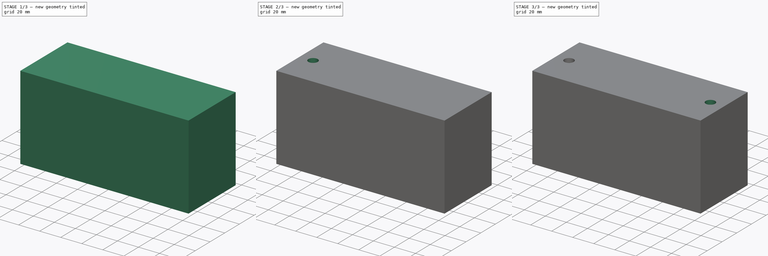
[diagram: build sequence overview — one tinted view per stage of 3, left to right]
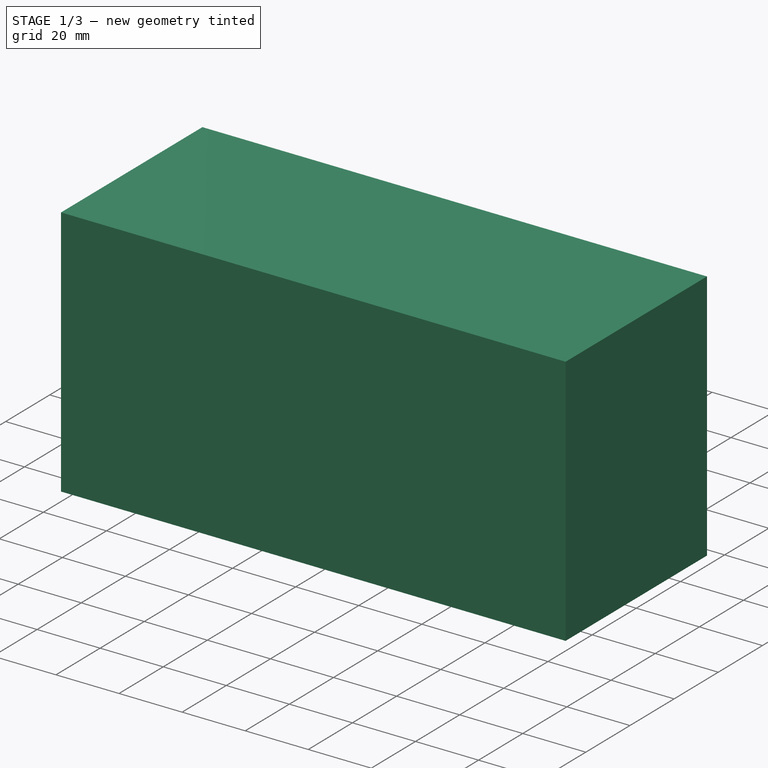
[diagram: stage 1 of 3 — iso view after this stage's code; geometry added in this stage tinted green]
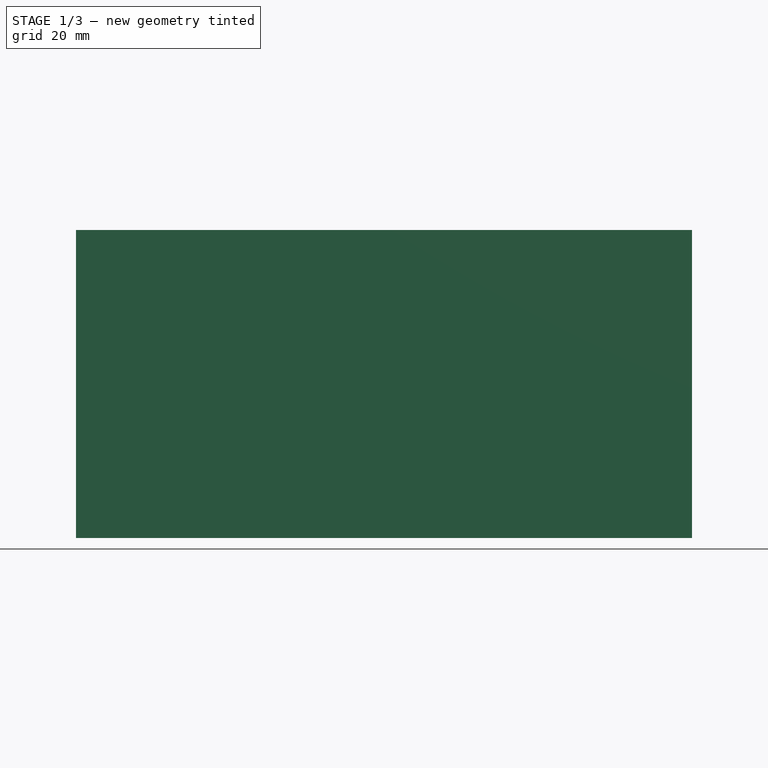
[diagram: stage 1 of 3 — front view after this stage's code; geometry added in this stage tinted green]
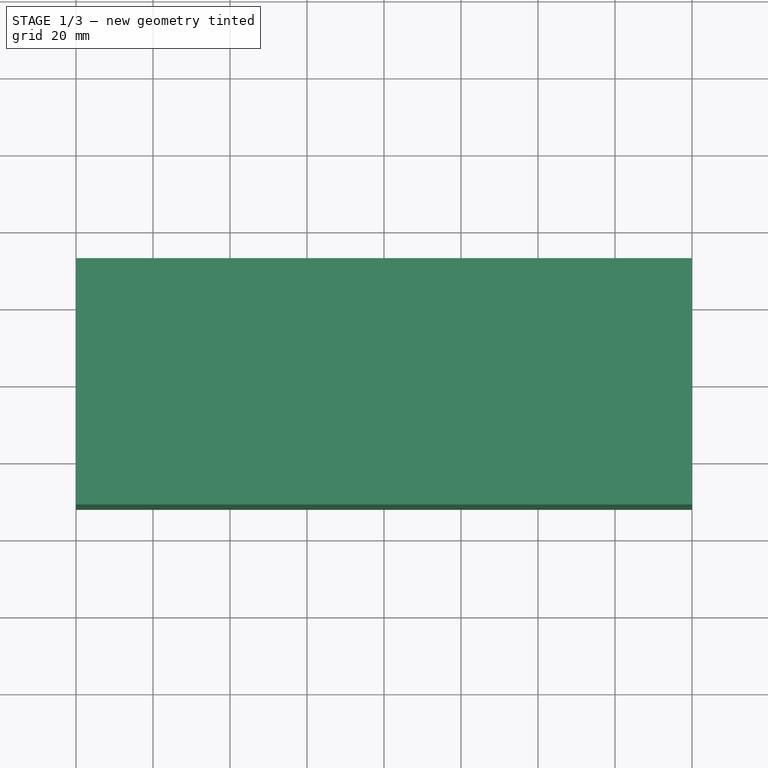
[diagram: stage 1 of 3 — top view after this stage's code; geometry added in this stage tinted green]
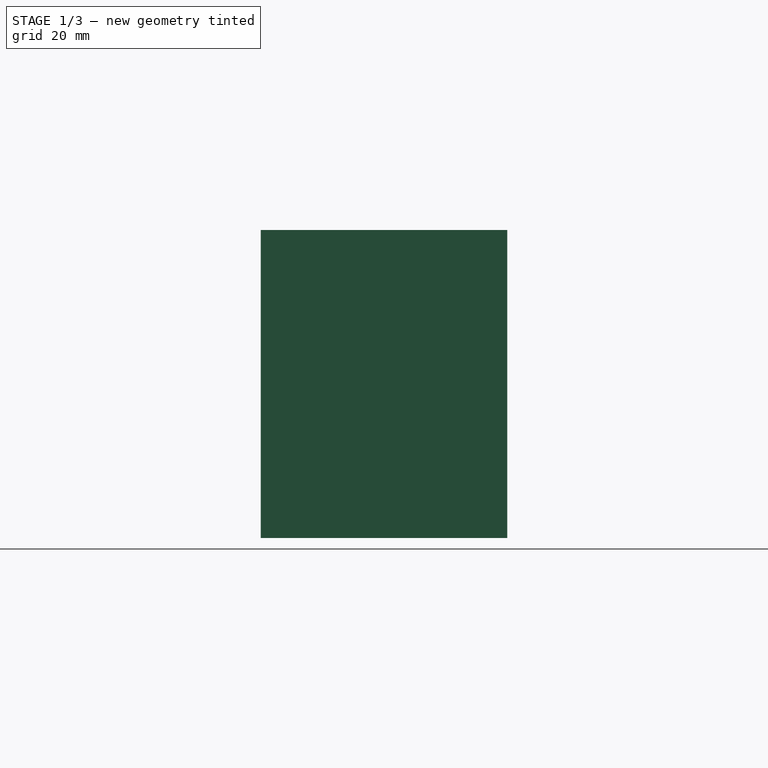
[diagram: stage 1 of 3 — right view after this stage's code; geometry added in this stage tinted green]
FCSTD DOCUMENT  (FreeCAD 0.21R33771 (Git))
Label: aquarium_filter
License: All rights reserved
LicenseURL: http://en.wikipedia.org/wiki/All_rights_reserved
objects: Sketcher::SketchObject×8, PartDesign::Pocket×6, PartDesign::Pad×2, PartDesign::Body×2
note: 26 computed .brp shape members not serialized (recipe doc carries the construction recipe); baked Part::Feature solids carry a one-line shape summary decoded from their .brp

FEATURE [Sketcher::SketchObject] Sketch
  FullyConstrained = true
  MapMode = 5
  Support = -> [XY_Plane]
  sketch-geometry (4):
    g0: LineSegment StartX=-80 StartY=32 StartZ=0 EndX=80 EndY=32 EndZ=0
    g1: LineSegment StartX=80 StartY=32 StartZ=0 EndX=80 EndY=-32 EndZ=0
    g2: LineSegment StartX=80 StartY=-32 StartZ=0 EndX=-80 EndY=-32 EndZ=0
    g3: LineSegment StartX=-80 StartY=-32 StartZ=0 EndX=-80 EndY=32 EndZ=0
  constraints (11):
    c: Coincident(g0,g1)
    c: Coincident(g1,g2)
    c: Coincident(g2,g3)
    c: Coincident(g3,g0)
    c: Horizontal(g0)
    c: Horizontal(g2)
    c: Vertical(g1)
    c: Vertical(g3)
    c: DistanceX(g0,g0) = 160
    c: DistanceY(g3,g3) = 64
    c: Symmetric(g0,g1,g-1)
FEATURE [PartDesign::Pad] Pad
  Direction = (0,0,1)
  Length = 80
  Length2 = 10
  Profile = -> Sketch
  ReferenceAxis = -> Sketch [N_Axis]
  Type = 0
FEATURE [Sketcher::SketchObject] Sketch001
  FullyConstrained = true
  MapMode = 5
  Support = -> [XY_Plane]
  sketch-geometry (6):
    g0: LineSegment StartX=-78 StartY=28 StartZ=0 EndX=78 EndY=28 EndZ=0
    g1: LineSegment StartX=78 StartY=28 StartZ=0 EndX=78 EndY=-28 EndZ=0
    g2: LineSegment StartX=78 StartY=-28 StartZ=0 EndX=-78 EndY=-28 EndZ=0
    g3: LineSegment StartX=-78 StartY=-28 StartZ=0 EndX=-78 EndY=28 EndZ=0
    g4: Circle CenterX=67 CenterY=0 CenterZ=0 NormalX=0 NormalY=0 NormalZ=1 AngleXU=0 Radius=4.5
    g5: Circle CenterX=67 CenterY=0 CenterZ=0 NormalX=0 NormalY=0 NormalZ=1 AngleXU=0 Radius=6.5
  constraints (16):
    c: Coincident(g0,g1)
    c: Coincident(g1,g2)
    c: Coincident(g2,g3)
    c: Coincident(g3,g0)
    c: Horizontal(g0)
    c: Horizontal(g2)
    c: Vertical(g1)
    c: Vertical(g3)
    c: DistanceX(g0,g0) = 156
    c: DistanceY(g3,g3) = 56
    c: Symmetric(g0,g1,g-1)
    c: PointOnObject(g4,g-1)
    c: Radius(g4) = 4.5
    c: DistanceX(g-1,g4) = 67
    c: Coincident(g5,g4)
    c: Radius(g5) = 6.5
FEATURE [PartDesign::Pocket] Pocket
  BaseFeature = -> Pad
  Direction = (0,0,-1)
  Length = 76
  Length2 = 5
  Profile = -> Sketch001
  ReferenceAxis = -> Sketch001 [N_Axis]
  Reversed = true
  Type = 0
FEATURE [PartDesign::Body] Body
  Group = -> [Sketch,Pad,Sketch001,Pocket,Sketch002,Pocket001,Sketch003,Pocket002,Sketch004,Pocket003,Sketch005,Pocket004,Sketch006,Pocket005]
  Origin = -> Origin
  Tip = -> Pocket005
FEATURE [Sketcher::SketchObject] Sketch007
  FullyConstrained = false
  MapMode = 5
  Support = -> [XY_Plane001]
  sketch-geometry (4):
    g0: LineSegment StartX=-54.1197 StartY=28.822 StartZ=0 EndX=-52.1197 EndY=28.822 EndZ=0
    g1: LineSegment StartX=-52.1197 StartY=28.822 StartZ=0 EndX=-52.1197 EndY=-28.178 EndZ=0
    g2: LineSegment StartX=-52.1197 StartY=-28.178 StartZ=0 EndX=-54.1197 EndY=-28.178 EndZ=0
    g3: LineSegment StartX=-54.1197 StartY=-28.178 StartZ=0 EndX=-54.1197 EndY=28.822 EndZ=0
  constraints (10):
    c: Coincident(g0,g1)
    c: Coincident(g1,g2)
    c: Coincident(g2,g3)
    c: Coincident(g3,g0)
    c: Horizontal(g0)
    c: Horizontal(g2)
    c: Vertical(g1)
    c: Vertical(g3)
    c: DistanceX(g2,g2) = 2
    c: DistanceY(g1,g1) = 57
FEATURE [PartDesign::Pad] Pad001
  Direction = (0,0,1)
  Length = 56
  Length2 = 10
  Profile = -> Sketch007
  ReferenceAxis = -> Sketch007 [N_Axis]
  Type = 0
FEATURE [PartDesign::Body] Body001
  Group = -> [Sketch007,Pad001]
  Origin = -> Origin001
  Placement = pos=(0,0,12) rot=(0,0,1;0rad)
  Tip = -> Pad001
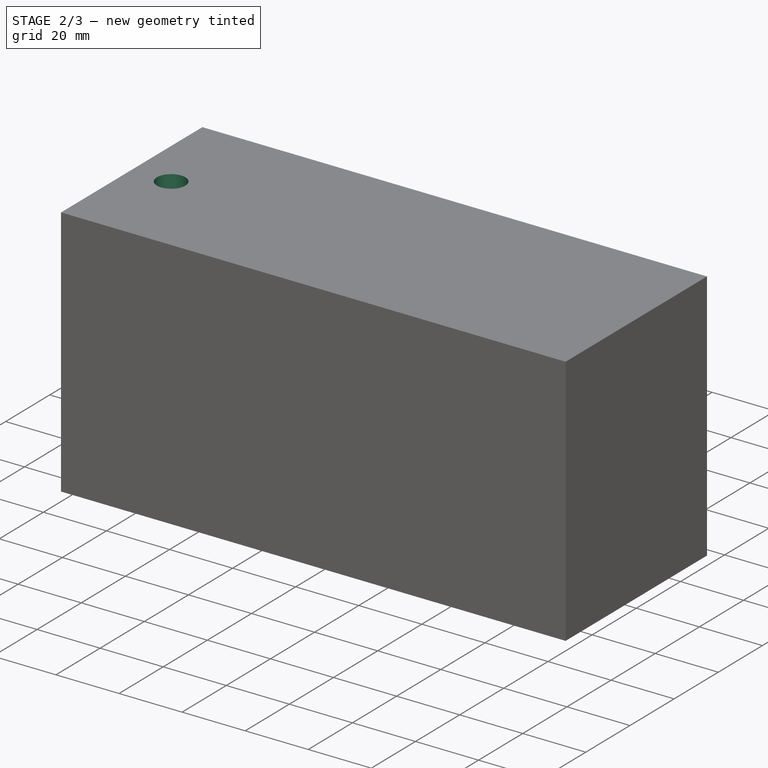
[diagram: stage 2 of 3 — iso view after this stage's code; geometry added in this stage tinted green]
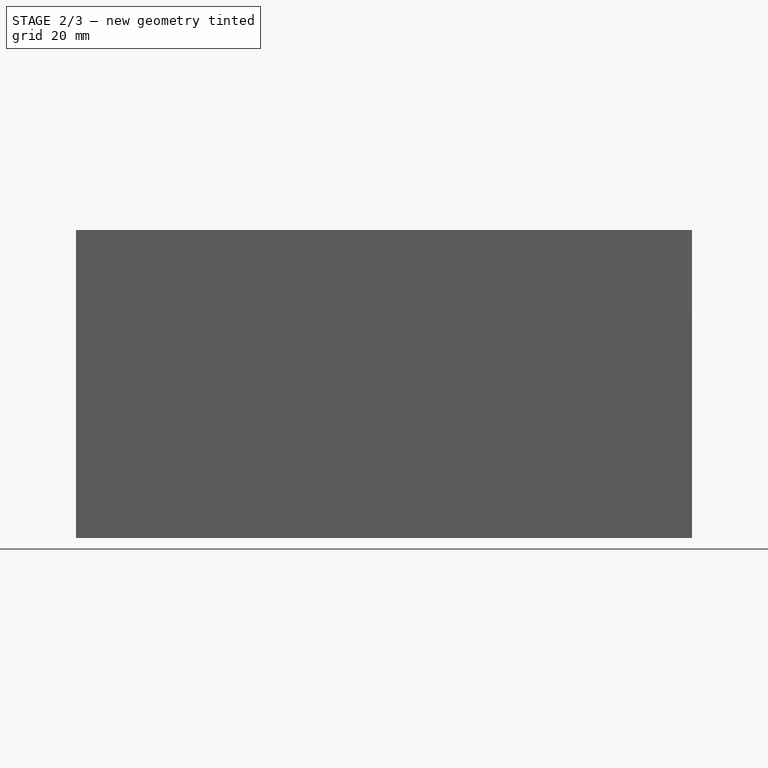
[diagram: stage 2 of 3 — front view after this stage's code; geometry added in this stage tinted green]
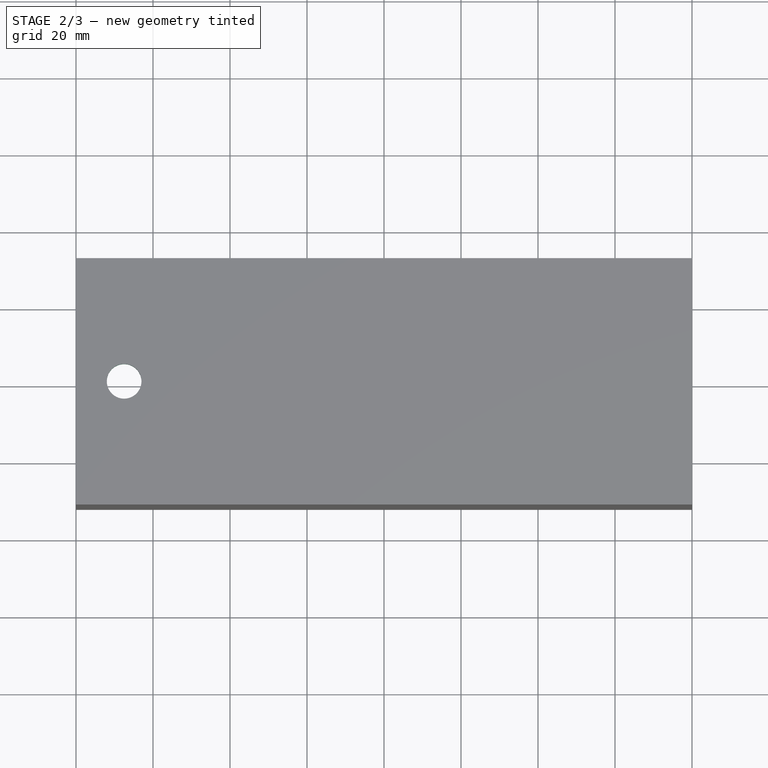
[diagram: stage 2 of 3 — top view after this stage's code; geometry added in this stage tinted green]
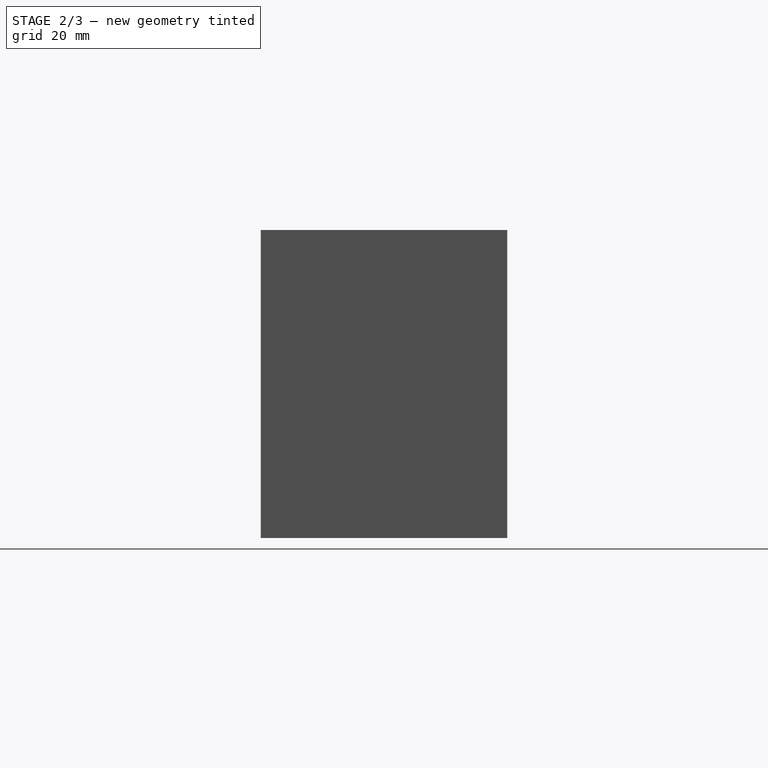
[diagram: stage 2 of 3 — right view after this stage's code; geometry added in this stage tinted green]
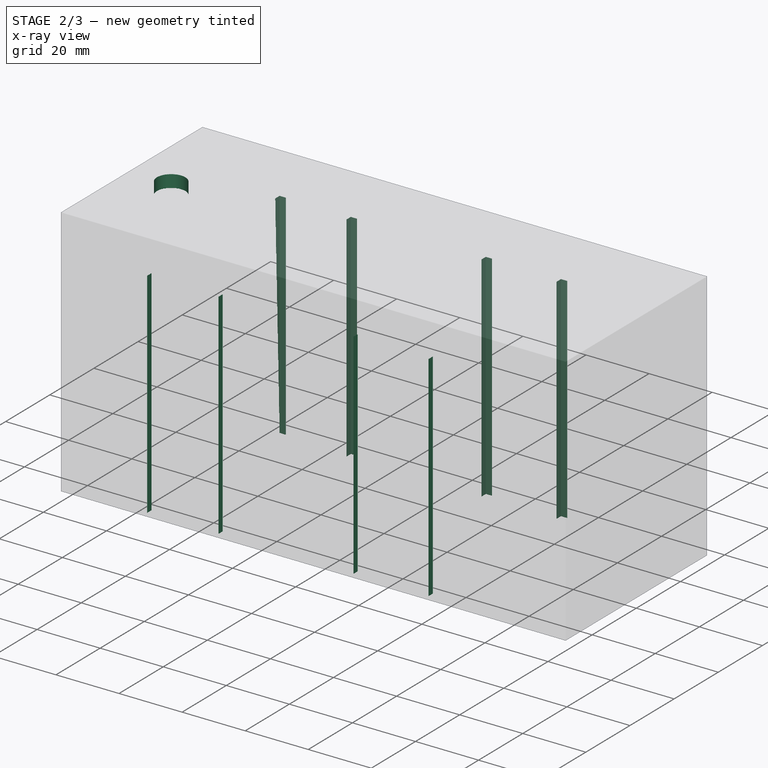
[diagram: stage 2 of 3 — x-ray composite at the iso view; earlier geometry ghosted, this stage's added geometry solid]
FEATURE [Sketcher::SketchObject] Sketch002
  FullyConstrained = true
  MapMode = 5
  Support = -> [XY_Plane]
  sketch-geometry (1):
    g0: Circle CenterX=-67.5 CenterY=0 CenterZ=0 NormalX=0 NormalY=0 NormalZ=1 AngleXU=0 Radius=4.5
  constraints (3):
    c: PointOnObject(g0,g-1)
    c: Radius(g0) = 4.5
    c: DistanceX(g0,g-1) = 67.5
FEATURE [PartDesign::Pocket] Pocket001
  BaseFeature = -> Pocket
  Direction = (0,0,-1)
  Length = 5
  Length2 = 5
  Profile = -> Sketch002
  ReferenceAxis = -> Sketch002 [N_Axis]
  Reversed = true
  Type = 1
FEATURE [Sketcher::SketchObject] Sketch003
  ExternalGeometry = -> [Pocket001]
  FullyConstrained = false
  MapMode = 5
  Support = -> [XY_Plane]
  sketch-geometry (16):
    g0: LineSegment StartX=-54.1231 StartY=30 StartZ=0 EndX=-52.1231 EndY=30 EndZ=0
    g1: LineSegment StartX=-52.1231 StartY=30 StartZ=0 EndX=-52.1231 EndY=-30 EndZ=0
    g2: LineSegment StartX=-52.1231 StartY=-30 StartZ=0 EndX=-54.1231 EndY=-30 EndZ=0
    g3: LineSegment StartX=-54.1231 StartY=-30 StartZ=0 EndX=-54.1231 EndY=30 EndZ=0
    g4: LineSegment StartX=-31.5424 StartY=30 StartZ=0 EndX=-29.5424 EndY=30 EndZ=0
    g5: LineSegment StartX=-29.5424 StartY=30 StartZ=0 EndX=-29.5424 EndY=-30 EndZ=0
    g6: LineSegment StartX=-29.5424 StartY=-30 StartZ=0 EndX=-31.5424 EndY=-30 EndZ=0
    g7: LineSegment StartX=-31.5424 StartY=-30 StartZ=0 EndX=-31.5424 EndY=30 EndZ=0
    g8: LineSegment StartX=11.2773 StartY=30 StartZ=0 EndX=13.2773 EndY=30 EndZ=0
    g9: LineSegment StartX=13.2773 StartY=30 StartZ=0 EndX=13.2773 EndY=-30 EndZ=0
    g10: LineSegment StartX=13.2773 StartY=-30 StartZ=0 EndX=11.2773 EndY=-30 EndZ=0
    g11: LineSegment StartX=11.2773 StartY=-30 StartZ=0 EndX=11.2773 EndY=30 EndZ=0
    g12: LineSegment StartX=37.1058 StartY=30 StartZ=0 EndX=35.1058 EndY=30 EndZ=0
    g13: LineSegment StartX=35.1058 StartY=30 StartZ=0 EndX=35.1058 EndY=-30 EndZ=0
    g14: LineSegment StartX=35.1058 StartY=-30 StartZ=0 EndX=37.1058 EndY=-30 EndZ=0
    g15: LineSegment StartX=37.1058 StartY=-30 StartZ=0 EndX=37.1058 EndY=30 EndZ=0
  constraints (42):
    c: Coincident(g0,g1)
    c: Coincident(g1,g2)
    c: Coincident(g2,g3)
    c: Coincident(g3,g0)
    c: Horizontal(g0)
    c: Horizontal(g2)
    c: Vertical(g1)
    c: Vertical(g3)
    c: DistanceY(g1,g1) = 60
    c: DistanceX(g0,g0) = 2
    c: DistanceY(g0,g-3) = 2
    c: Coincident(g4,g5)
    c: Coincident(g5,g6)
    c: Coincident(g6,g7)
    c: Coincident(g7,g4)
    c: Horizontal(g4)
    c: Horizontal(g6)
    c: Vertical(g5)
    c: Vertical(g7)
    c: Coincident(g8,g9)
    c: Coincident(g9,g10)
    c: Coincident(g10,g11)
    c: Coincident(g11,g8)
    c: Horizontal(g8)
    c: Horizontal(g10)
    c: Coincident(g12,g13)
    c: Coincident(g13,g14)
    c: Coincident(g14,g15)
    c: Coincident(g15,g12)
    c: Horizontal(g12)
    c: Horizontal(g14)
    c: Vertical(g13)
    c: Vertical(g15)
    c: DistanceY(g4,g-3) = 2
    c: DistanceY(g8,g-3) = 2
    c: DistanceY(g12,g-3) = 2
    c: DistanceX(g12,g12) = 2
    c: DistanceX(g8,g8) = 2
    c: DistanceX(g4,g4) = 2
    c: Horizontal(g6,g1)
    c: Equal(g5,g11)
    c: Equal(g11,g13)
FEATURE [PartDesign::Pocket] Pocket002
  BaseFeature = -> Pocket001
  Direction = (0,0,-1)
  Length = 68
  Length2 = 5
  Profile = -> Sketch003
  ReferenceAxis = -> Sketch003 [N_Axis]
  Reversed = true
  Type = 0
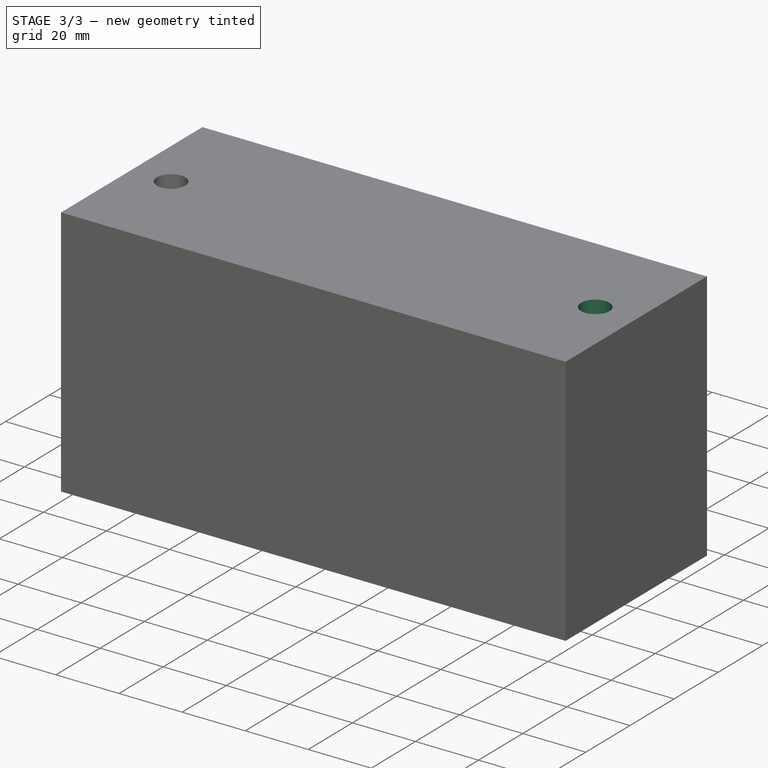
[diagram: stage 3 of 3 — iso view after this stage's code; geometry added in this stage tinted green]
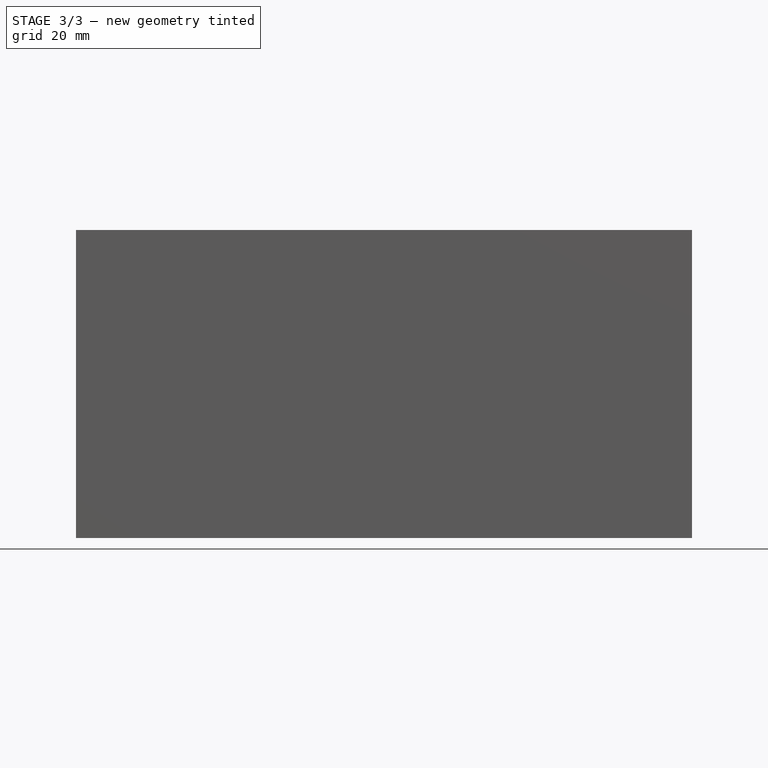
[diagram: stage 3 of 3 — front view after this stage's code; geometry added in this stage tinted green]
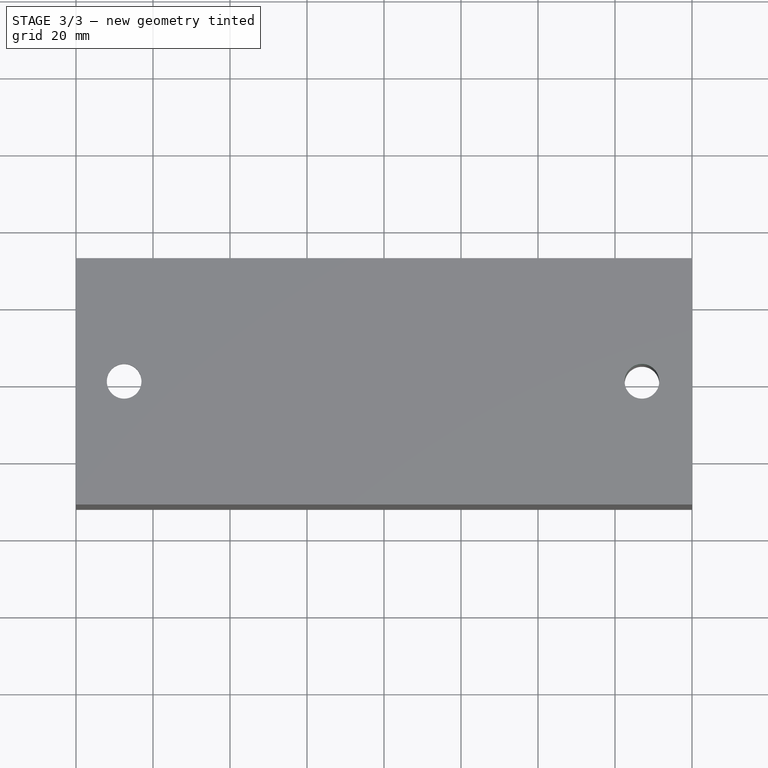
[diagram: stage 3 of 3 — top view after this stage's code; geometry added in this stage tinted green]
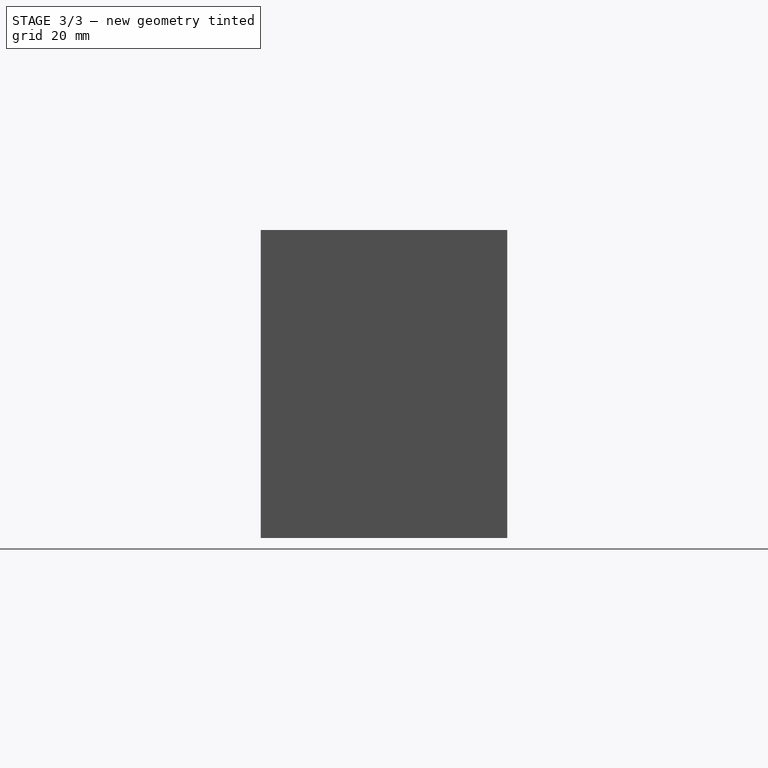
[diagram: stage 3 of 3 — right view after this stage's code; geometry added in this stage tinted green]
FEATURE [Sketcher::SketchObject] Sketch004
  ExternalGeometry = -> [Pocket002]
  FullyConstrained = false
  MapMode = 5
  Support = -> [XY_Plane]
  sketch-geometry (16):
    g0: LineSegment StartX=-44.199 StartY=30 StartZ=0 EndX=-46.199 EndY=30 EndZ=0
    g1: LineSegment StartX=-46.199 StartY=30 StartZ=0 EndX=-46.199 EndY=-30 EndZ=0
    g2: LineSegment StartX=-46.199 StartY=-30 StartZ=0 EndX=-44.199 EndY=-30 EndZ=0
    g3: LineSegment StartX=-44.199 StartY=-30 StartZ=0 EndX=-44.199 EndY=30 EndZ=0
    g4: LineSegment StartX=-18.4339 StartY=30 StartZ=0 EndX=-16.4339 EndY=30 EndZ=0
    g5: LineSegment StartX=-16.4339 StartY=30 StartZ=0 EndX=-16.4339 EndY=-30 EndZ=0
    g6: LineSegment StartX=-16.4339 StartY=-30 StartZ=0 EndX=-18.4339 EndY=-30 EndZ=0
    g7: LineSegment StartX=-18.4339 StartY=-30 StartZ=0 EndX=-18.4339 EndY=30 EndZ=0
    g8: LineSegment StartX=21.1934 StartY=30 StartZ=0 EndX=23.1934 EndY=30 EndZ=0
    g9: LineSegment StartX=23.1934 StartY=30 StartZ=0 EndX=23.1934 EndY=-30 EndZ=0
    g10: LineSegment StartX=23.1934 StartY=-30 StartZ=0 EndX=21.1934 EndY=-30 EndZ=0
    g11: LineSegment StartX=21.1934 StartY=-30 StartZ=0 EndX=21.1934 EndY=30 EndZ=0
    g12: LineSegment StartX=52.6037 StartY=30 StartZ=0 EndX=54.6037 EndY=30 EndZ=0
    g13: LineSegment StartX=54.6037 StartY=30 StartZ=0 EndX=54.6037 EndY=-30 EndZ=0
    g14: LineSegment StartX=54.6037 StartY=-30 StartZ=0 EndX=52.6037 EndY=-30 EndZ=0
    g15: LineSegment StartX=52.6037 StartY=-30 StartZ=0 EndX=52.6037 EndY=30 EndZ=0
  constraints (44):
    c: Coincident(g0,g1)
    c: Coincident(g1,g2)
    c: Coincident(g2,g3)
    c: Coincident(g3,g0)
    c: Horizontal(g0)
    c: Horizontal(g2)
    c: Vertical(g1)
    c: Vertical(g3)
    c: Coincident(g4,g5)
    c: Coincident(g5,g6)
    c: Coincident(g6,g7)
    c: Coincident(g7,g4)
    c: Horizontal(g4)
    c: Horizontal(g6)
    c: Vertical(g5)
    c: Vertical(g7)
    c: Coincident(g8,g9)
    c: Coincident(g9,g10)
    c: Coincident(g10,g11)
    c: Coincident(g11,g8)
    c: Horizontal(g8)
    c: Horizontal(g10)
    c: Vertical(g9)
    c: Vertical(g11)
    c: Coincident(g12,g13)
    c: Coincident(g13,g14)
    c: Coincident(g14,g15)
    c: Coincident(g15,g12)
    c: Horizontal(g12)
    c: Horizontal(g14)
    c: Vertical(g13)
    c: Vertical(g15)
    c: Equal(g0,g4)
    c: Equal(g4,g8)
    c: Equal(g8,g12)
    c: DistanceX(g8,g8) = 2
    c: Equal(g1,g7)
    c: Equal(g7,g11)
    c: Equal(g11,g15)
    c: DistanceY(g9,g9) = 60
    c: DistanceY(g12,g-3) = 2
    c: Horizontal(g8,g12)
    c: Horizontal(g4,g8)
    c: Horizontal(g0,g4)
FEATURE [PartDesign::Pocket] Pocket003
  BaseFeature = -> Pocket002
  Direction = (0,0,-1)
  Length = 78
  Length2 = 5
  Profile = -> Sketch004
  ReferenceAxis = -> Sketch004 [N_Axis]
  Reversed = true
  Type = 0
FEATURE [Sketcher::SketchObject] Sketch005
  FullyConstrained = false
  MapMode = 5
  Support = -> [XY_Plane]
  sketch-geometry (1):
    g0: Circle CenterX=67.083 CenterY=0 CenterZ=0 NormalX=0 NormalY=0 NormalZ=1 AngleXU=0 Radius=9.02535
  constraints (1):
    c: PointOnObject(g0,g-1)
FEATURE [PartDesign::Pocket] Pocket004
  BaseFeature = -> Pocket003
  Direction = (0,0,-1)
  Length = 38
  Length2 = 5
  Profile = -> Sketch005
  ReferenceAxis = -> Sketch005 [N_Axis]
  Reversed = true
  Type = 0
FEATURE [Sketcher::SketchObject] Sketch006
  FullyConstrained = true
  MapMode = 5
  Support = -> [XY_Plane]
  sketch-geometry (1):
    g0: Circle CenterX=67 CenterY=0 CenterZ=0 NormalX=0 NormalY=0 NormalZ=1 AngleXU=0 Radius=4.5
  constraints (3):
    c: PointOnObject(g0,g-1)
    c: Radius(g0) = 4.5
    c: DistanceX(g-1,g0) = 67
FEATURE [PartDesign::Pocket] Pocket005
  BaseFeature = -> Pocket004
  Direction = (0,0,-1)
  Length = 5
  Length2 = 5
  Profile = -> Sketch006
  ReferenceAxis = -> Sketch006 [N_Axis]
  Reversed = true
  Type = 1
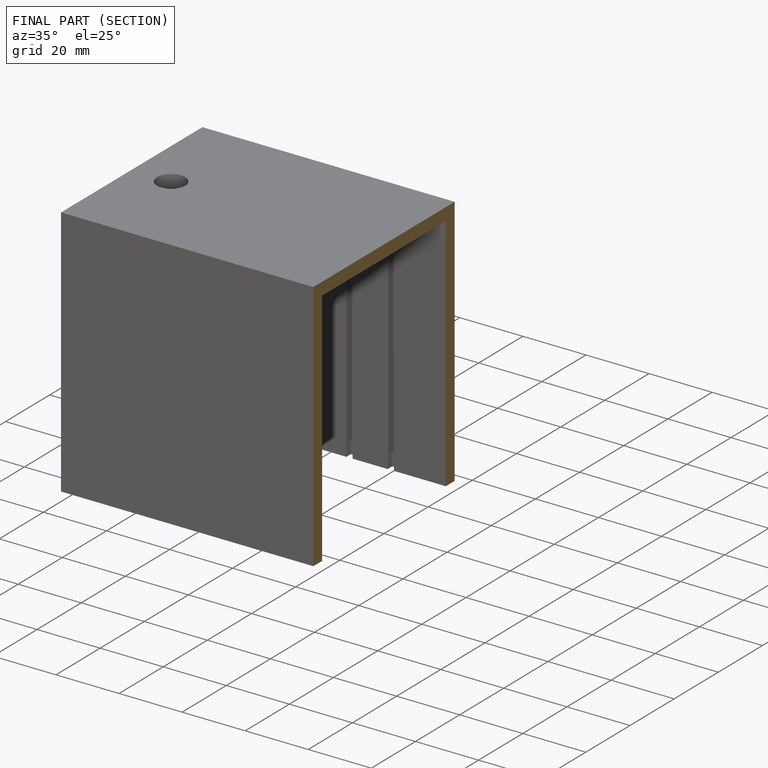
[diagram: finished part — half-section view (interior)]
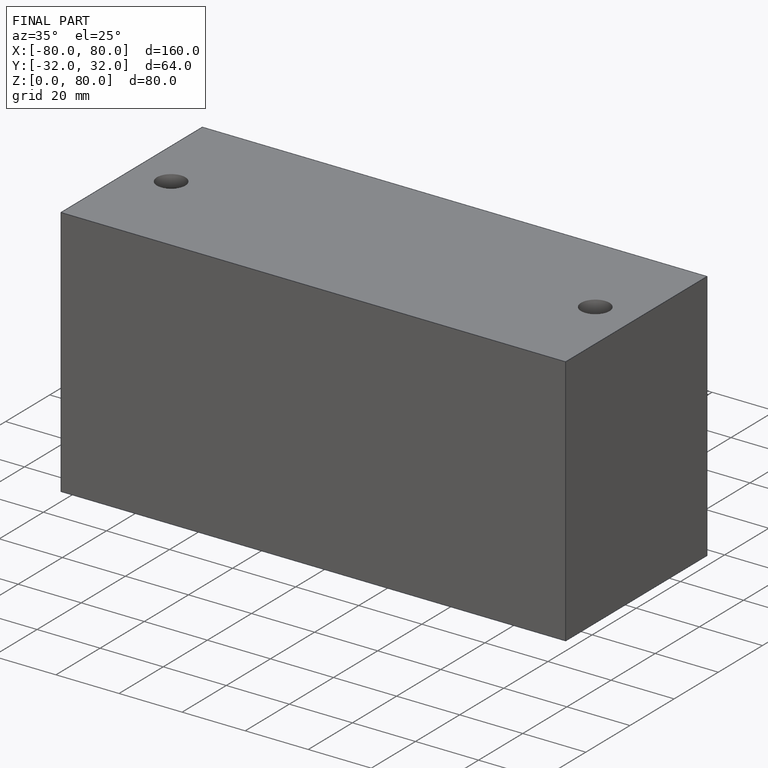
[diagram: finished part — iso view with bounding-box wireframe]
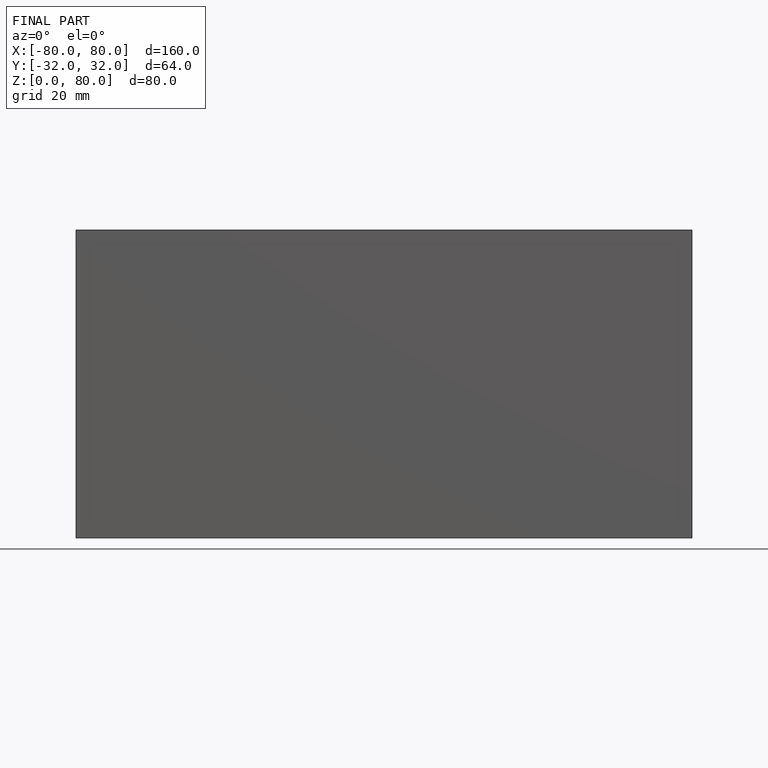
[diagram: finished part — front view with bounding-box wireframe]
